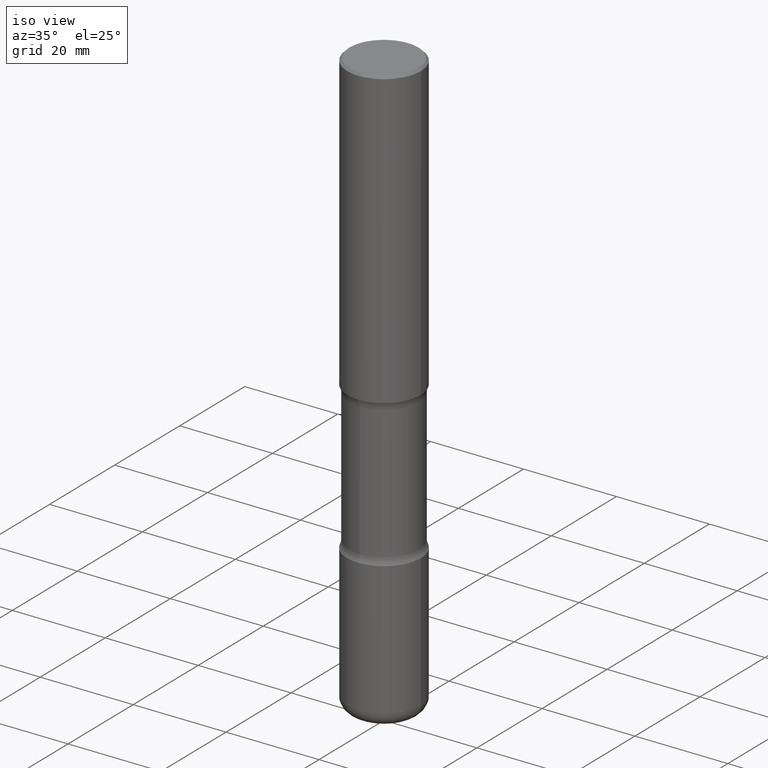
[diagram: clean part render]
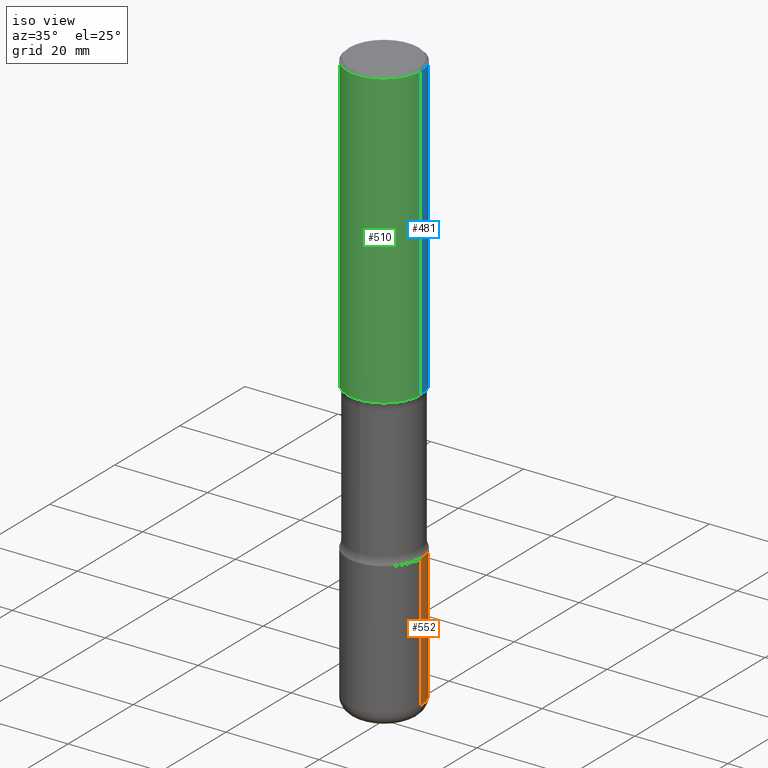
[diagram: same view with three faces highlighted in distinct colors, each labeled with its STEP entity id]
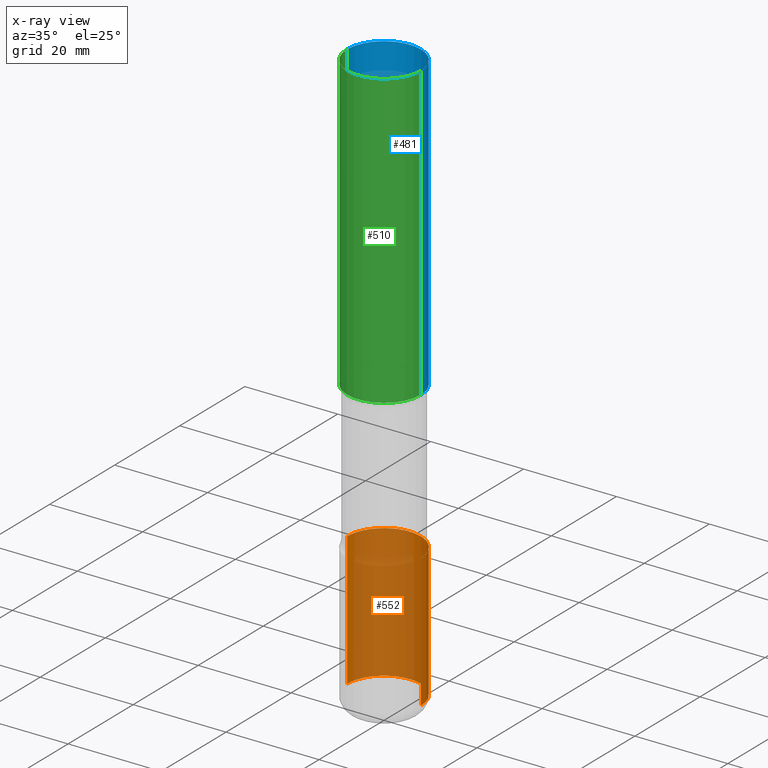
[diagram: x-ray of the same camera — body ghosted, the three highlighted faces saturated]
A machine part, iso view with three faces highlighted in distinct colors.
The next image is the same camera in x-ray (body ghosted, the three faces saturated) — at least one of them is partly hidden behind the body in this view.
Their STEP definitions:

[orange] entity #552 — the highlighted cylindrical surface (partial cylindrical patch) has radius 7.9375 mm, axis along (-0, 0, 1).
#7 = DIRECTION ( 'NONE',  ( -2.445468806185136597E-29, 3.491481338843145583E-15, 1.000000000000000000 ) ) ;
#14 = ORIENTED_EDGE ( 'NONE', *, *, #188, .F. ) ;
#21 = VECTOR ( 'NONE', #168, 39.37007874015748143 ) ;
#32 = VECTOR ( 'NONE', #325, 39.37007874015748143 ) ;
#41 = DIRECTION ( 'NONE',  ( -2.445468806185136597E-29, 3.491481338843145583E-15, 1.000000000000000000 ) ) ;
#48 = DIRECTION ( 'NONE',  ( 1.000000000000000000, -6.982962677686269077E-15, 0.000000000000000000 ) ) ;
#59 = DIRECTION ( 'NONE',  ( -2.445468806185136597E-29, 3.491481338843145583E-15, 1.000000000000000000 ) ) ;
#79 = CARTESIAN_POINT ( 'NONE',  ( 0.3125000000000002220, -2.182175836776959925E-15, 1.523805242436231196E-29 ) ) ;
#84 = VERTEX_POINT ( 'NONE', #451 ) ;
#107 = AXIS2_PLACEMENT_3D ( 'NONE', #133, #7, #48 ) ;
#133 = CARTESIAN_POINT ( 'NONE',  ( 1.193388777418346668E-28, -1.703842893355455010E-14, -4.880000000000000782 ) ) ;
#142 = ORIENTED_EDGE ( 'NONE', *, *, #374, .T. ) ;
#165 = EDGE_CURVE ( 'NONE', #84, #218, #329, .T. ) ;
#166 = CARTESIAN_POINT ( 'NONE',  ( -0.3125000000000002220, 2.220446049250314659E-15, -1.537167215704659073E-29 ) ) ;
#168 = DIRECTION ( 'NONE',  ( -2.445468806185136877E-29, 3.491481338843145188E-15, 1.000000000000000000 ) ) ;
#188 = EDGE_CURVE ( 'NONE', #399, #218, #452, .T. ) ;
#199 = AXIS2_PLACEMENT_3D ( 'NONE', #533, #59, #442 ) ;
#208 = VERTEX_POINT ( 'NONE', #210 ) ;
#210 = CARTESIAN_POINT ( 'NONE',  ( 0.3125000000000002220, -1.922060477033151318E-14, -4.880000000000000782 ) ) ;
#218 = VERTEX_POINT ( 'NONE', #417 ) ;
#221 = CARTESIAN_POINT ( 'NONE',  ( 0.3125000000000001665, -1.527523085743875418E-14, -3.749999999999999556 ) ) ;
#242 = EDGE_CURVE ( 'NONE', #208, #399, #465, .T. ) ;
#249 = CARTESIAN_POINT ( 'NONE',  ( 9.170508023194261117E-29, -1.309305502066179584E-14, -3.749999999999999556 ) ) ;
#279 = FACE_OUTER_BOUND ( 'NONE', #352, .T. ) ;
#325 = DIRECTION ( 'NONE',  ( -2.445468806185136877E-29, 3.491481338843145188E-15, 1.000000000000000000 ) ) ;
#329 = LINE ( 'NONE', #166, #32 ) ;
#346 = CIRCLE ( 'NONE', #107, 0.3125000000000002776 ) ;
#352 = EDGE_LOOP ( 'NONE', ( #142, #535, #14, #390 ) ) ;
#353 = CYLINDRICAL_SURFACE ( 'NONE', #199, 0.3125000000000002220 ) ;
#374 = EDGE_CURVE ( 'NONE', #208, #84, #346, .T. ) ;
#390 = ORIENTED_EDGE ( 'NONE', *, *, #242, .F. ) ;
#399 = VERTEX_POINT ( 'NONE', #221 ) ;
#417 = CARTESIAN_POINT ( 'NONE',  ( -0.3125000000000001665, -1.284529592785785752E-14, -3.749999999999999556 ) ) ;
#420 = DIRECTION ( 'NONE',  ( 1.000000000000000000, -6.982962677686265133E-15, 0.000000000000000000 ) ) ;
#442 = DIRECTION ( 'NONE',  ( 1.000000000000000000, -6.982962677686266711E-15, 4.876176775795936353E-29 ) ) ;
#451 = CARTESIAN_POINT ( 'NONE',  ( -0.3125000000000002220, -1.481798288430423702E-14, -4.880000000000000782 ) ) ;
#452 = CIRCLE ( 'NONE', #537, 0.3125000000000001665 ) ;
#465 = LINE ( 'NONE', #79, #21 ) ;
#533 = CARTESIAN_POINT ( 'NONE',  ( 0.000000000000000000, 0.000000000000000000, 0.000000000000000000 ) ) ;
#535 = ORIENTED_EDGE ( 'NONE', *, *, #165, .T. ) ;
#537 = AXIS2_PLACEMENT_3D ( 'NONE', #249, #41, #420 ) ;
#552 = ADVANCED_FACE ( 'NONE', ( #279 ), #353, .T. ) ;

[blue] entity #481 — the highlighted cylindrical surface (partial cylindrical patch) has radius 7.9375 mm, axis along (-0, 0, 1).
#4 = CIRCLE ( 'NONE', #58, 0.3124999999999998890 ) ;
#19 = CARTESIAN_POINT ( 'NONE',  ( 0.000000000000000000, 0.000000000000000000, 0.000000000000000000 ) ) ;
#22 = CARTESIAN_POINT ( 'NONE',  ( 0.3125000000000000000, -2.182175836776958347E-15, 1.523805242436230075E-29 ) ) ;
#46 = CARTESIAN_POINT ( 'NONE',  ( -0.3124999999999998890, 2.112346210000094260E-15, -0.02000000000000006981 ) ) ;
#58 = AXIS2_PLACEMENT_3D ( 'NONE', #297, #393, #130 ) ;
#65 = CYLINDRICAL_SURFACE ( 'NONE', #78, 0.3125000000000000000 ) ;
#67 = DIRECTION ( 'NONE',  ( 1.000000000000000000, -6.982962677686266711E-15, 4.876176775795936353E-29 ) ) ;
#70 = CARTESIAN_POINT ( 'NONE',  ( -0.3125000000000002220, -2.178820437692046306E-15, -2.499999999999999556 ) ) ;
#73 = VERTEX_POINT ( 'NONE', #541 ) ;
#78 = AXIS2_PLACEMENT_3D ( 'NONE', #19, #186, #67 ) ;
#80 = EDGE_CURVE ( 'NONE', #478, #73, #278, .T. ) ;
#85 = VECTOR ( 'NONE', #212, 39.37007874015748143 ) ;
#91 = ORIENTED_EDGE ( 'NONE', *, *, #80, .F. ) ;
#118 = EDGE_CURVE ( 'NONE', #192, #363, #385, .T. ) ;
#125 = AXIS2_PLACEMENT_3D ( 'NONE', #135, #351, #173 ) ;
#130 = DIRECTION ( 'NONE',  ( 1.000000000000000000, -6.982962677686266711E-15, 0.000000000000000000 ) ) ;
#135 = CARTESIAN_POINT ( 'NONE',  ( 6.113672015462840371E-29, -8.728703347107863365E-15, -2.499999999999999556 ) ) ;
#173 = DIRECTION ( 'NONE',  ( 1.000000000000000000, -6.982962677686266711E-15, 0.000000000000000000 ) ) ;
#186 = DIRECTION ( 'NONE',  ( -2.445468806185136597E-29, 3.491481338843145583E-15, 1.000000000000000000 ) ) ;
#192 = VERTEX_POINT ( 'NONE', #70 ) ;
#201 = DIRECTION ( 'NONE',  ( -2.445468806185136877E-29, 3.491481338843145188E-15, 1.000000000000000000 ) ) ;
#212 = DIRECTION ( 'NONE',  ( -2.445468806185136877E-29, 3.491481338843145188E-15, 1.000000000000000000 ) ) ;
#233 = VECTOR ( 'NONE', #201, 39.37007874015748143 ) ;
#246 = EDGE_LOOP ( 'NONE', ( #527, #507, #425, #91 ) ) ;
#278 = LINE ( 'NONE', #22, #233 ) ;
#297 = CARTESIAN_POINT ( 'NONE',  ( 4.890937612370289799E-31, -6.982962677686315028E-17, -0.02000000000000006981 ) ) ;
#351 = DIRECTION ( 'NONE',  ( -2.445468806185136597E-29, 3.491481338843145583E-15, 1.000000000000000000 ) ) ;
#362 = EDGE_CURVE ( 'NONE', #478, #192, #539, .T. ) ;
#363 = VERTEX_POINT ( 'NONE', #46 ) ;
#385 = LINE ( 'NONE', #426, #85 ) ;
#393 = DIRECTION ( 'NONE',  ( -2.445468806185136597E-29, 3.491481338843145583E-15, 1.000000000000000000 ) ) ;
#418 = EDGE_CURVE ( 'NONE', #73, #363, #4, .T. ) ;
#425 = ORIENTED_EDGE ( 'NONE', *, *, #418, .F. ) ;
#426 = CARTESIAN_POINT ( 'NONE',  ( -0.3125000000000000000, 2.220446049250313081E-15, -1.537167215704658232E-29 ) ) ;
#478 = VERTEX_POINT ( 'NONE', #530 ) ;
#481 = ADVANCED_FACE ( 'NONE', ( #486 ), #65, .T. ) ;
#486 = FACE_OUTER_BOUND ( 'NONE', #246, .T. ) ;
#507 = ORIENTED_EDGE ( 'NONE', *, *, #118, .T. ) ;
#527 = ORIENTED_EDGE ( 'NONE', *, *, #362, .T. ) ;
#530 = CARTESIAN_POINT ( 'NONE',  ( 0.3125000000000002220, -1.091087918388482329E-14, -2.499999999999999556 ) ) ;
#539 = CIRCLE ( 'NONE', #125, 0.3125000000000002220 ) ;
#541 = CARTESIAN_POINT ( 'NONE',  ( 0.3124999999999998890, -2.213735251080466123E-15, -0.02000000000000006981 ) ) ;

[green] entity #510 — the highlighted cylindrical surface (partial cylindrical patch) has radius 7.9375 mm, axis along (-0, 0, 1).
#22 = CARTESIAN_POINT ( 'NONE',  ( 0.3125000000000000000, -2.182175836776958347E-15, 1.523805242436230075E-29 ) ) ;
#46 = CARTESIAN_POINT ( 'NONE',  ( -0.3124999999999998890, 2.112346210000094260E-15, -0.02000000000000006981 ) ) ;
#51 = CARTESIAN_POINT ( 'NONE',  ( 6.113672015462840371E-29, -8.728703347107863365E-15, -2.499999999999999556 ) ) ;
#60 = EDGE_LOOP ( 'NONE', ( #439, #525, #301, #268 ) ) ;
#70 = CARTESIAN_POINT ( 'NONE',  ( -0.3125000000000002220, -2.178820437692046306E-15, -2.499999999999999556 ) ) ;
#73 = VERTEX_POINT ( 'NONE', #541 ) ;
#80 = EDGE_CURVE ( 'NONE', #478, #73, #278, .T. ) ;
#85 = VECTOR ( 'NONE', #212, 39.37007874015748143 ) ;
#98 = AXIS2_PLACEMENT_3D ( 'NONE', #102, #150, #196 ) ;
#102 = CARTESIAN_POINT ( 'NONE',  ( 0.000000000000000000, 0.000000000000000000, 0.000000000000000000 ) ) ;
#118 = EDGE_CURVE ( 'NONE', #192, #363, #385, .T. ) ;
#139 = EDGE_CURVE ( 'NONE', #363, #73, #547, .T. ) ;
#150 = DIRECTION ( 'NONE',  ( -2.445468806185136597E-29, 3.491481338843145583E-15, 1.000000000000000000 ) ) ;
#192 = VERTEX_POINT ( 'NONE', #70 ) ;
#196 = DIRECTION ( 'NONE',  ( 1.000000000000000000, -6.982962677686266711E-15, 4.876176775795936353E-29 ) ) ;
#201 = DIRECTION ( 'NONE',  ( -2.445468806185136877E-29, 3.491481338843145188E-15, 1.000000000000000000 ) ) ;
#207 = CARTESIAN_POINT ( 'NONE',  ( 4.890937612370289799E-31, -6.982962677686315028E-17, -0.02000000000000006981 ) ) ;
#212 = DIRECTION ( 'NONE',  ( -2.445468806185136877E-29, 3.491481338843145188E-15, 1.000000000000000000 ) ) ;
#233 = VECTOR ( 'NONE', #201, 39.37007874015748143 ) ;
#237 = FACE_OUTER_BOUND ( 'NONE', #60, .T. ) ;
#245 = DIRECTION ( 'NONE',  ( -2.445468806185136597E-29, 3.491481338843145583E-15, 1.000000000000000000 ) ) ;
#268 = ORIENTED_EDGE ( 'NONE', *, *, #139, .F. ) ;
#278 = LINE ( 'NONE', #22, #233 ) ;
#284 = DIRECTION ( 'NONE',  ( 1.000000000000000000, -6.982962677686266711E-15, 0.000000000000000000 ) ) ;
#298 = AXIS2_PLACEMENT_3D ( 'NONE', #207, #245, #284 ) ;
#301 = ORIENTED_EDGE ( 'NONE', *, *, #80, .T. ) ;
#306 = DIRECTION ( 'NONE',  ( -2.445468806185136597E-29, 3.491481338843145583E-15, 1.000000000000000000 ) ) ;
#317 = AXIS2_PLACEMENT_3D ( 'NONE', #51, #306, #482 ) ;
#363 = VERTEX_POINT ( 'NONE', #46 ) ;
#385 = LINE ( 'NONE', #426, #85 ) ;
#426 = CARTESIAN_POINT ( 'NONE',  ( -0.3125000000000000000, 2.220446049250313081E-15, -1.537167215704658232E-29 ) ) ;
#439 = ORIENTED_EDGE ( 'NONE', *, *, #118, .F. ) ;
#447 = EDGE_CURVE ( 'NONE', #192, #478, #463, .T. ) ;
#463 = CIRCLE ( 'NONE', #317, 0.3125000000000002220 ) ;
#478 = VERTEX_POINT ( 'NONE', #530 ) ;
#482 = DIRECTION ( 'NONE',  ( 1.000000000000000000, -6.982962677686266711E-15, 0.000000000000000000 ) ) ;
#493 = CYLINDRICAL_SURFACE ( 'NONE', #98, 0.3125000000000000000 ) ;
#510 = ADVANCED_FACE ( 'NONE', ( #237 ), #493, .T. ) ;
#525 = ORIENTED_EDGE ( 'NONE', *, *, #447, .T. ) ;
#530 = CARTESIAN_POINT ( 'NONE',  ( 0.3125000000000002220, -1.091087918388482329E-14, -2.499999999999999556 ) ) ;
#541 = CARTESIAN_POINT ( 'NONE',  ( 0.3124999999999998890, -2.213735251080466123E-15, -0.02000000000000006981 ) ) ;
#547 = CIRCLE ( 'NONE', #298, 0.3124999999999998890 ) ;